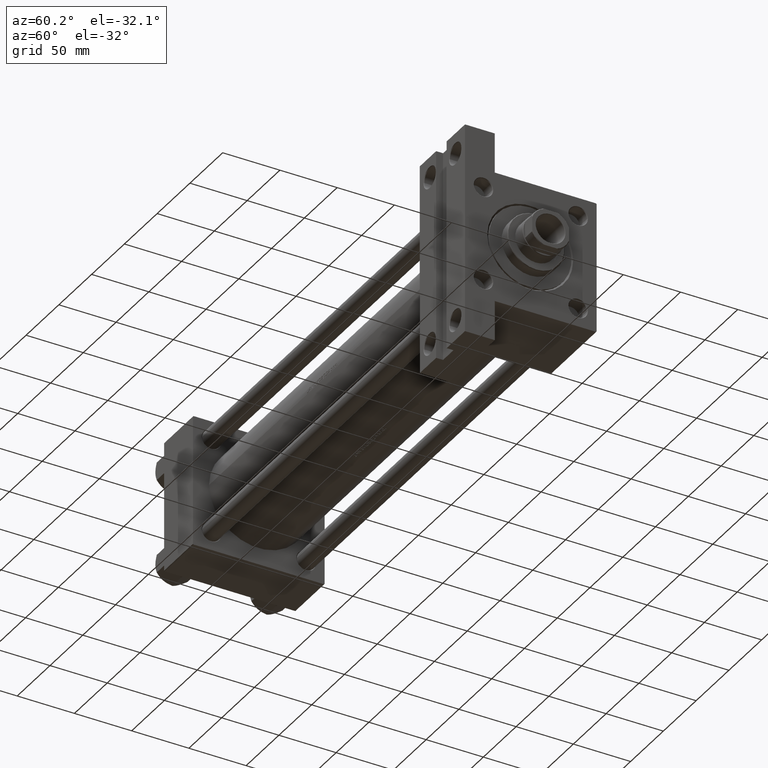
[diagram: clean part render]
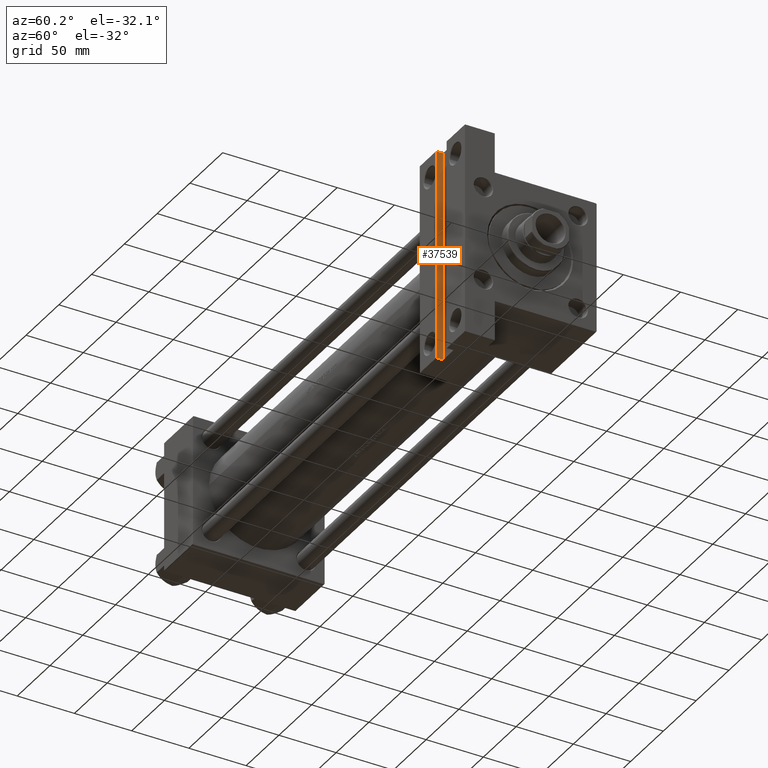
[diagram: same view with one face highlighted and labeled with its STEP entity id]
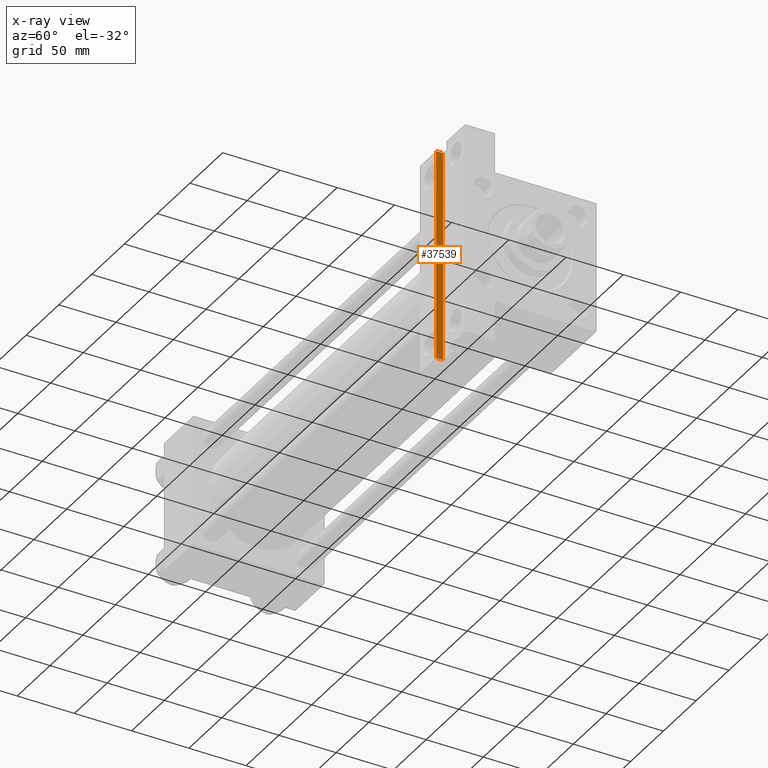
[diagram: x-ray of the same camera — body ghosted, the highlighted face saturated]
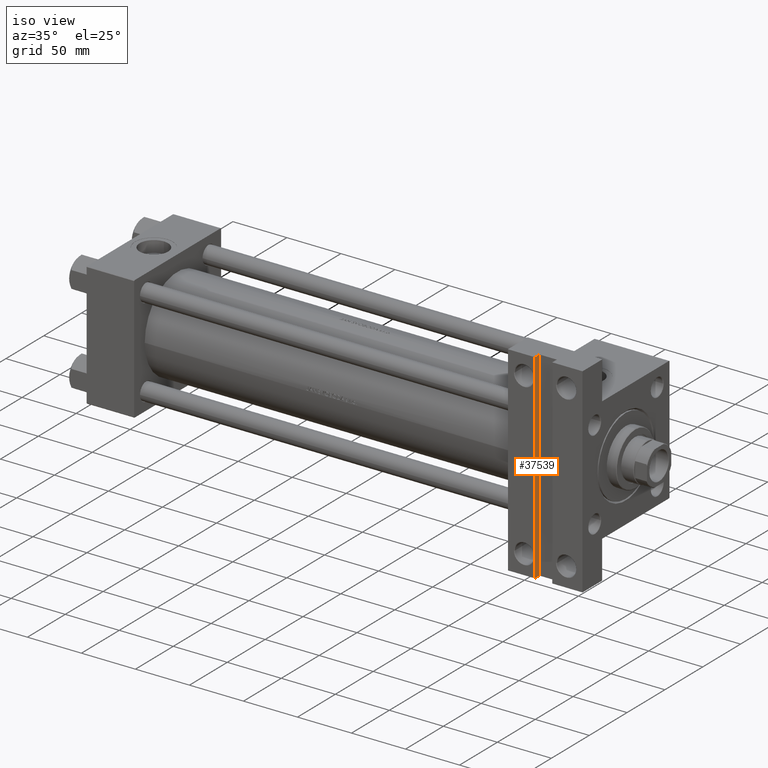
[diagram: same view with one face highlighted and labeled with its STEP entity id]
A machine part, auxiliary view. The second image highlights one B-rep face of the part: STEP entity #37539.
The next image is the same camera in x-ray: the body ghosted, the highlighted face saturated — about 0% of this face is hidden behind the body in this view.
A second angle (iso view) of the same face is appended — the face is thin or edge-on in the first view.
In plain terms, the highlighted planar face has unit normal (-1, 0, 0).
Its self-contained STEP definition (entity closure, byte-faithful):
#468 = CARTESIAN_POINT ( 'NONE',  ( 415.0000000000000000, 92.49999999999997158, -51.49999999999997868 ) ) ;
#4999 = DIRECTION ( 'NONE',  ( 0.000000000000000000, 0.000000000000000000, 1.000000000000000000 ) ) ;
#5990 = CARTESIAN_POINT ( 'NONE',  ( 415.0000000000000000, 92.49999999999997158, -51.49999999999997868 ) ) ;
#6958 = DIRECTION ( 'NONE',  ( -0.000000000000000000, -0.000000000000000000, -1.000000000000000000 ) ) ;
#9670 = LINE ( 'NONE', #13778, #33055 ) ;
#11452 = EDGE_LOOP ( 'NONE', ( #13933, #40824, #24382, #42894 ) ) ;
#12302 = DIRECTION ( 'NONE',  ( -1.000000000000000000, 0.000000000000000000, 0.000000000000000000 ) ) ;
#12336 = EDGE_CURVE ( 'NONE', #43538, #48041, #34273, .T. ) ;
#13778 = CARTESIAN_POINT ( 'NONE',  ( 415.0000000000000000, -92.49999999999997158, -51.49999999999997868 ) ) ;
#13933 = ORIENTED_EDGE ( 'NONE', *, *, #46444, .T. ) ;
#15588 = DIRECTION ( 'NONE',  ( 0.000000000000000000, 1.000000000000000000, 0.000000000000000000 ) ) ;
#16504 = EDGE_CURVE ( 'NONE', #20691, #33789, #9670, .T. ) ;
#18781 = DIRECTION ( 'NONE',  ( 0.000000000000000000, 1.000000000000000000, 0.000000000000000000 ) ) ;
#20691 = VERTEX_POINT ( 'NONE', #24714 ) ;
#22671 = LINE ( 'NONE', #37504, #35618 ) ;
#23251 = CARTESIAN_POINT ( 'NONE',  ( 415.0000000000000000, -92.49999999999997158, -51.49999999999997868 ) ) ;
#23596 = LINE ( 'NONE', #33819, #28010 ) ;
#24382 = ORIENTED_EDGE ( 'NONE', *, *, #43034, .F. ) ;
#24714 = CARTESIAN_POINT ( 'NONE',  ( 415.0000000000000000, -92.49999999999997158, -51.49999999999997868 ) ) ;
#25749 = CARTESIAN_POINT ( 'NONE',  ( 415.0000000000000000, -92.49999999999997158, -57.49999999999997158 ) ) ;
#28010 = VECTOR ( 'NONE', #15588, 1000.000000000000000 ) ;
#28807 = CARTESIAN_POINT ( 'NONE',  ( 415.0000000000000000, 92.49999999999997158, -57.49999999999997158 ) ) ;
#30306 = FACE_OUTER_BOUND ( 'NONE', #11452, .T. ) ;
#33055 = VECTOR ( 'NONE', #6958, 1000.000000000000000 ) ;
#33789 = VERTEX_POINT ( 'NONE', #25749 ) ;
#33819 = CARTESIAN_POINT ( 'NONE',  ( 415.0000000000000000, -92.49999999999997158, -57.49999999999997158 ) ) ;
#34273 = LINE ( 'NONE', #468, #39152 ) ;
#35618 = VECTOR ( 'NONE', #18781, 1000.000000000000000 ) ;
#37504 = CARTESIAN_POINT ( 'NONE',  ( 415.0000000000000000, -92.49999999999997158, -51.49999999999997868 ) ) ;
#37539 = ADVANCED_FACE ( 'NONE', ( #30306 ), #45618, .F. ) ;
#39152 = VECTOR ( 'NONE', #41099, 1000.000000000000000 ) ;
#40824 = ORIENTED_EDGE ( 'NONE', *, *, #12336, .F. ) ;
#41099 = DIRECTION ( 'NONE',  ( -0.000000000000000000, -0.000000000000000000, -1.000000000000000000 ) ) ;
#42894 = ORIENTED_EDGE ( 'NONE', *, *, #16504, .T. ) ;
#43034 = EDGE_CURVE ( 'NONE', #20691, #43538, #22671, .T. ) ;
#43538 = VERTEX_POINT ( 'NONE', #5990 ) ;
#45618 = PLANE ( 'NONE',  #46157 ) ;
#46157 = AXIS2_PLACEMENT_3D ( 'NONE', #23251, #12302, #4999 ) ;
#46444 = EDGE_CURVE ( 'NONE', #33789, #48041, #23596, .T. ) ;
#48041 = VERTEX_POINT ( 'NONE', #28807 ) ;